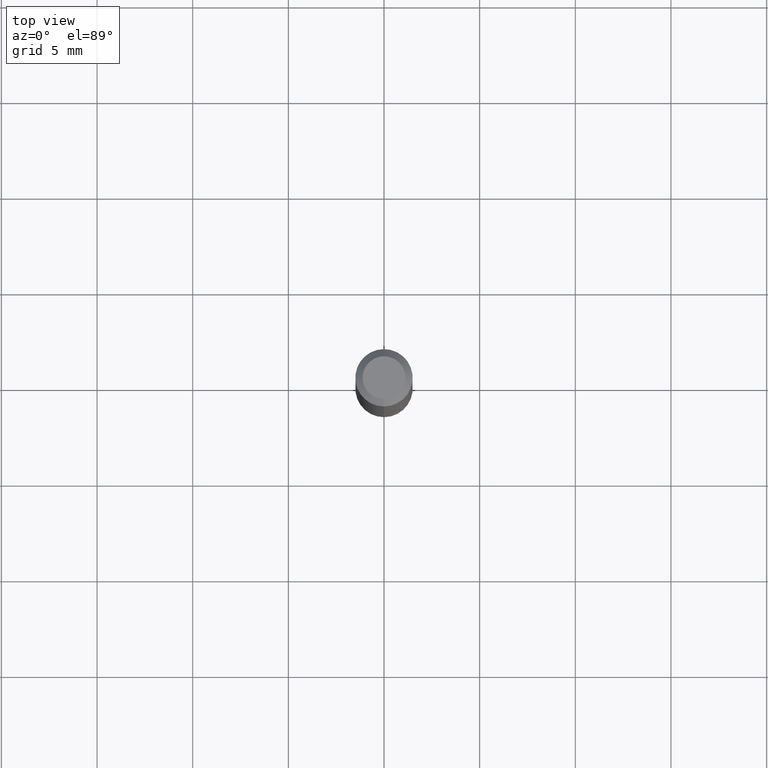
[diagram: clean part render]
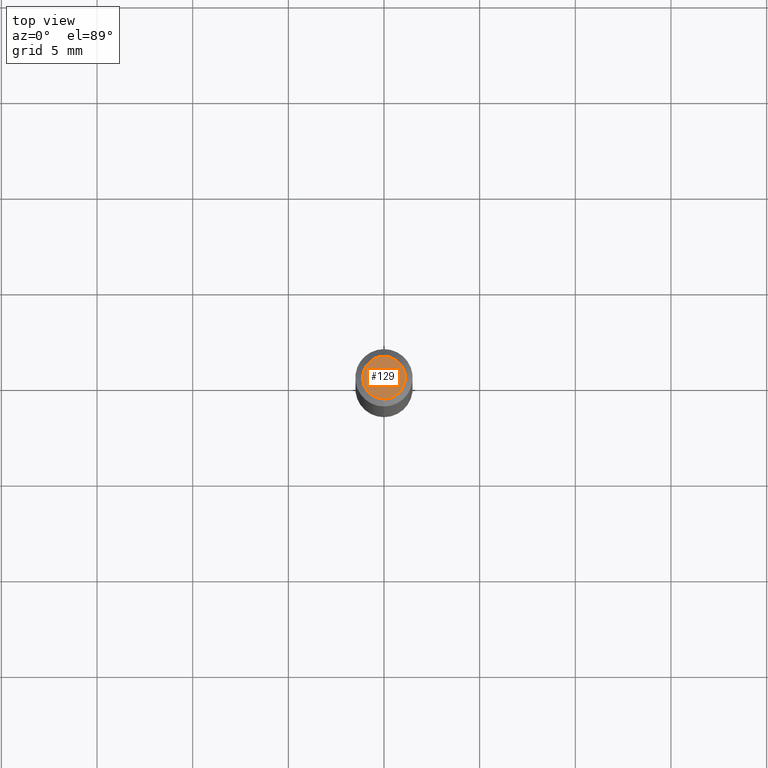
[diagram: same view with one face highlighted and labeled with its STEP entity id]
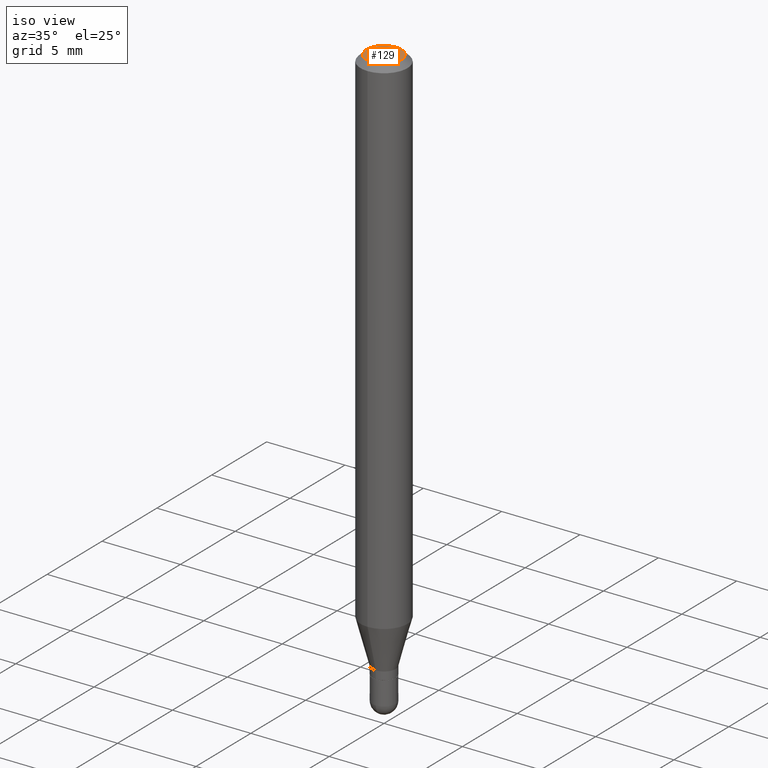
[diagram: same view with one face highlighted and labeled with its STEP entity id]
A machine part, top view. The second image highlights one B-rep face of the part: STEP entity #129.
A second angle (iso view) of the same face is appended — the face is thin or edge-on in the first view.
In plain terms, the highlighted planar face has unit normal (0, -0, -1).
Its self-contained STEP definition (entity closure, byte-faithful):
#33 = FACE_OUTER_BOUND ( 'NONE', #367, .T. ) ;
#51 = DIRECTION ( 'NONE',  ( -2.445527102149587346E-29, 3.491397855704051540E-15, 1.000000000000000000 ) ) ;
#56 = CARTESIAN_POINT ( 'NONE',  ( -3.536586717851222218E-16, -0.04404999999999999888, 6.212758519530678863E-17 ) ) ;
#91 = CARTESIAN_POINT ( 'NONE',  ( 3.599717260347271507E-16, 0.04404999999999999888, -2.454645658922200893E-16 ) ) ;
#94 = EDGE_CURVE ( 'NONE', #476, #326, #490, .T. ) ;
#120 = CIRCLE ( 'NONE', #472, 0.04404999999999999888 ) ;
#129 = ADVANCED_FACE ( 'NONE', ( #33 ), #154, .F. ) ;
#135 = AXIS2_PLACEMENT_3D ( 'NONE', #433, #353, #312 ) ;
#140 = ORIENTED_EDGE ( 'NONE', *, *, #190, .T. ) ;
#154 = PLANE ( 'NONE',  #135 ) ;
#190 = EDGE_CURVE ( 'NONE', #326, #476, #120, .T. ) ;
#205 = DIRECTION ( 'NONE',  ( -6.982962677686265133E-15, -1.000000000000000000, 3.491397855704051540E-15 ) ) ;
#312 = DIRECTION ( 'NONE',  ( 6.982962677686265922E-15, 1.000000000000000000, -3.491397855704051145E-15 ) ) ;
#326 = VERTEX_POINT ( 'NONE', #91 ) ;
#342 = DIRECTION ( 'NONE',  ( -2.445527102149587346E-29, 3.491397855704051540E-15, 1.000000000000000000 ) ) ;
#353 = DIRECTION ( 'NONE',  ( 2.445527102149587626E-29, -3.491397855704051145E-15, -1.000000000000000000 ) ) ;
#367 = EDGE_LOOP ( 'NONE', ( #140, #371 ) ) ;
#371 = ORIENTED_EDGE ( 'NONE', *, *, #94, .T. ) ;
#380 = DIRECTION ( 'NONE',  ( -6.982962677686265133E-15, -1.000000000000000000, 3.491397855704051540E-15 ) ) ;
#433 = CARTESIAN_POINT ( 'NONE',  ( 3.075995059520799729E-16, 0.04404999999999999888, -1.996303207179918042E-16 ) ) ;
#449 = CARTESIAN_POINT ( 'NONE',  ( 2.241777775602886502E-45, -3.200511706382291446E-31, -9.166849034845666883E-17 ) ) ;
#463 = CARTESIAN_POINT ( 'NONE',  ( 2.241777775602886502E-45, -3.200511706382291446E-31, -9.166849034845666883E-17 ) ) ;
#471 = AXIS2_PLACEMENT_3D ( 'NONE', #463, #342, #380 ) ;
#472 = AXIS2_PLACEMENT_3D ( 'NONE', #449, #51, #205 ) ;
#476 = VERTEX_POINT ( 'NONE', #56 ) ;
#490 = CIRCLE ( 'NONE', #471, 0.04404999999999999888 ) ;